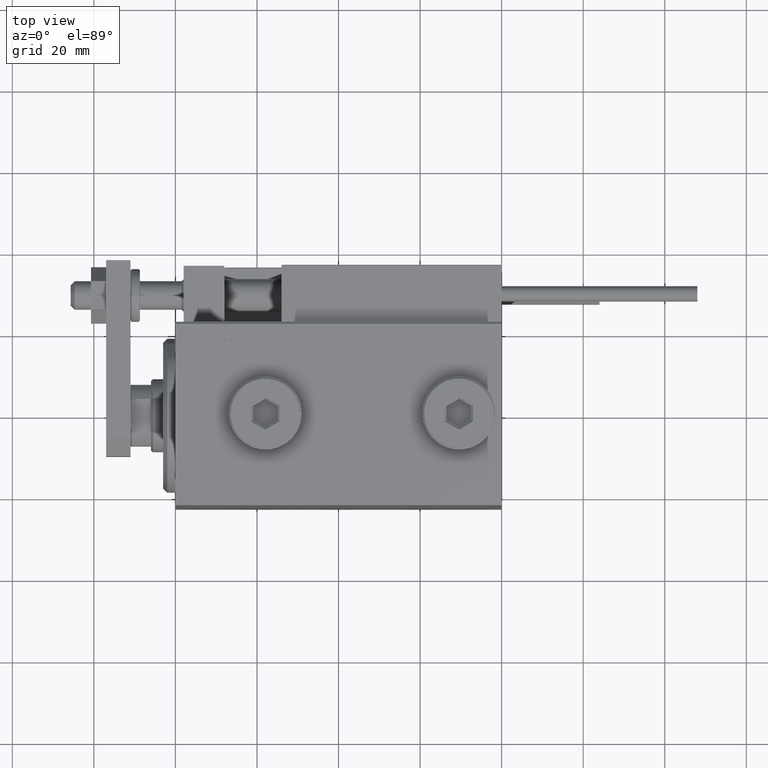
[diagram: clean part render]
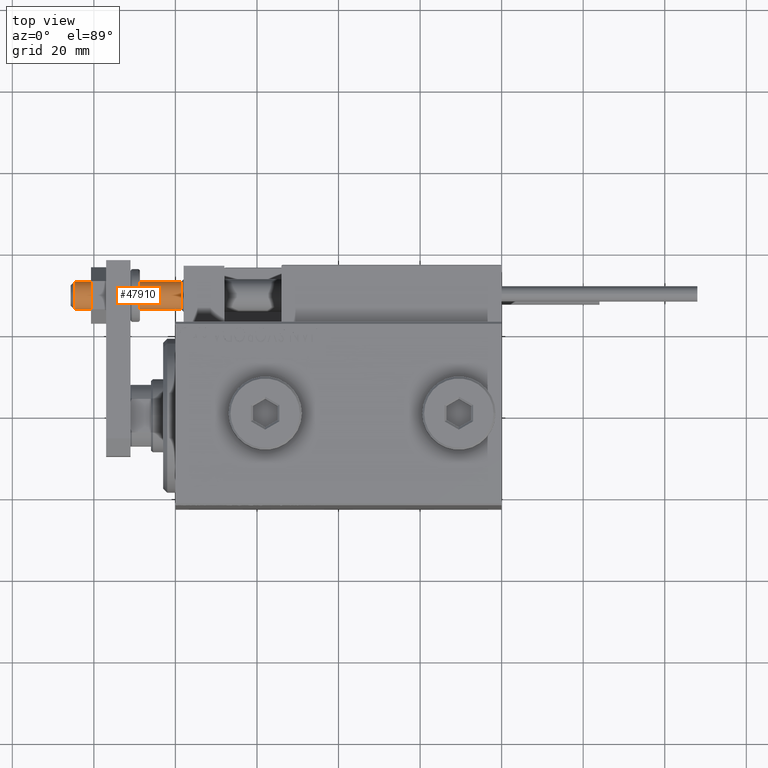
[diagram: same view with one face highlighted and labeled with its STEP entity id]
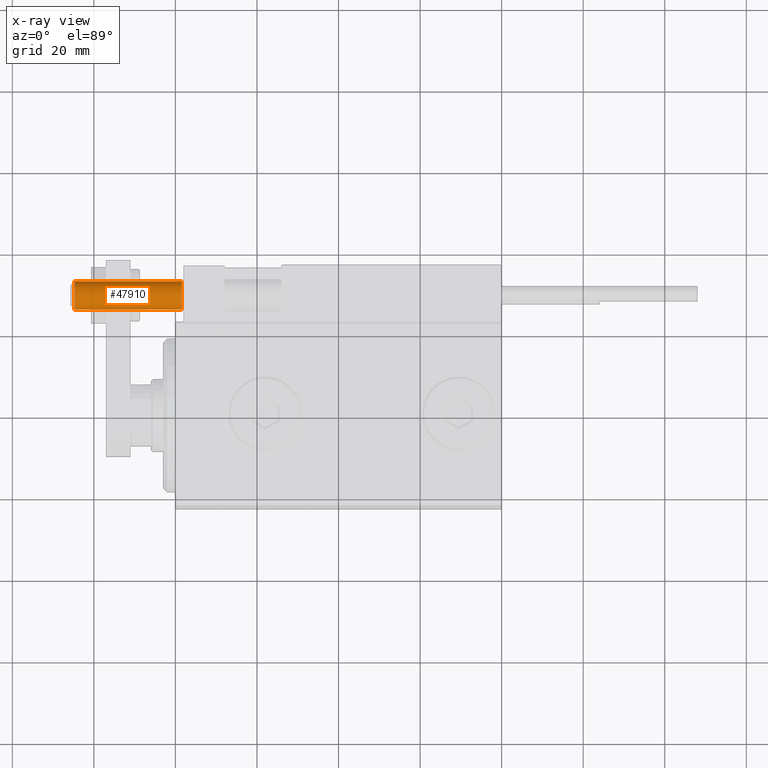
[diagram: x-ray of the same camera — body ghosted, the highlighted face saturated]
A machine part, top view. The second image highlights one B-rep face of the part: STEP entity #47910.
The next image is the same camera in x-ray: the body ghosted, the highlighted face saturated — about 0% of this face is hidden behind the body in this view.
In plain terms, the highlighted cylindrical surface (edge-blend (fillet) strip) has radius 3.5 mm, axis along (1, -0, -0).
Its self-contained STEP definition (entity closure, byte-faithful):
#107 = ORIENTED_EDGE ( 'NONE', *, *, #42774, .T. ) ;
#1455 = ORIENTED_EDGE ( 'NONE', *, *, #26327, .T. ) ;
#2087 = EDGE_LOOP ( 'NONE', ( #28945, #1455, #107, #8140 ) ) ;
#4722 = DIRECTION ( 'NONE',  ( -0.000000000000000000, -0.000000000000000000, 1.000000000000000000 ) ) ;
#7881 = LINE ( 'NONE', #24541, #35867 ) ;
#8140 = ORIENTED_EDGE ( 'NONE', *, *, #33872, .F. ) ;
#9620 = CARTESIAN_POINT ( 'NONE',  ( 3.500000000000000000, 0.000000000000000000, 1.500000000000025535 ) ) ;
#10351 = VERTEX_POINT ( 'NONE', #9620 ) ;
#10849 = DIRECTION ( 'NONE',  ( 0.000000000000000000, 0.000000000000000000, -1.000000000000000000 ) ) ;
#11017 = VECTOR ( 'NONE', #33064, 1000.000000000000000 ) ;
#11650 = VERTEX_POINT ( 'NONE', #31993 ) ;
#12354 = DIRECTION ( 'NONE',  ( -0.000000000000000000, -0.000000000000000000, 1.000000000000000000 ) ) ;
#14240 = DIRECTION ( 'NONE',  ( 1.000000000000000000, 0.000000000000000000, 0.000000000000000000 ) ) ;
#17802 = DIRECTION ( 'NONE',  ( 0.000000000000000000, 0.000000000000000000, 1.000000000000000000 ) ) ;
#17979 = CARTESIAN_POINT ( 'NONE',  ( 3.500000000000000000, 0.000000000000000000, -24.70000000000005969 ) ) ;
#19875 = CARTESIAN_POINT ( 'NONE',  ( -3.500000000000000000, 4.286263797015735609E-16, 1.500000000000025535 ) ) ;
#19946 = AXIS2_PLACEMENT_3D ( 'NONE', #41509, #17802, #29281 ) ;
#19976 = CIRCLE ( 'NONE', #19946, 3.500000000000000000 ) ;
#24541 = CARTESIAN_POINT ( 'NONE',  ( -3.500000000000000000, 4.286263797015735609E-16, -25.69999999999999929 ) ) ;
#25031 = EDGE_CURVE ( 'NONE', #35906, #11650, #19976, .T. ) ;
#25983 = AXIS2_PLACEMENT_3D ( 'NONE', #38210, #10849, #14240 ) ;
#26327 = EDGE_CURVE ( 'NONE', #11650, #46260, #7881, .T. ) ;
#28945 = ORIENTED_EDGE ( 'NONE', *, *, #25031, .T. ) ;
#29281 = DIRECTION ( 'NONE',  ( -1.000000000000000000, 0.000000000000000000, 0.000000000000000000 ) ) ;
#31160 = AXIS2_PLACEMENT_3D ( 'NONE', #48826, #12354, #48301 ) ;
#31993 = CARTESIAN_POINT ( 'NONE',  ( -3.500000000000000000, 4.286263797015735609E-16, -24.70000000000005969 ) ) ;
#32281 = CARTESIAN_POINT ( 'NONE',  ( 3.500000000000000000, 0.000000000000000000, -25.69999999999999929 ) ) ;
#33064 = DIRECTION ( 'NONE',  ( -0.000000000000000000, -0.000000000000000000, 1.000000000000000000 ) ) ;
#33474 = CIRCLE ( 'NONE', #25983, 3.500000000000000000 ) ;
#33872 = EDGE_CURVE ( 'NONE', #35906, #10351, #44510, .T. ) ;
#35867 = VECTOR ( 'NONE', #4722, 1000.000000000000000 ) ;
#35906 = VERTEX_POINT ( 'NONE', #17979 ) ;
#36074 = CYLINDRICAL_SURFACE ( 'NONE', #31160, 3.500000000000000000 ) ;
#36322 = FACE_OUTER_BOUND ( 'NONE', #2087, .T. ) ;
#38210 = CARTESIAN_POINT ( 'NONE',  ( 0.000000000000000000, 0.000000000000000000, 1.500000000000025535 ) ) ;
#41509 = CARTESIAN_POINT ( 'NONE',  ( 0.000000000000000000, 0.000000000000000000, -24.70000000000005969 ) ) ;
#42774 = EDGE_CURVE ( 'NONE', #46260, #10351, #33474, .T. ) ;
#44510 = LINE ( 'NONE', #32281, #11017 ) ;
#46260 = VERTEX_POINT ( 'NONE', #19875 ) ;
#47910 = ADVANCED_FACE ( 'NONE', ( #36322 ), #36074, .T. ) ;
#48301 = DIRECTION ( 'NONE',  ( 1.000000000000000000, 0.000000000000000000, 0.000000000000000000 ) ) ;
#48826 = CARTESIAN_POINT ( 'NONE',  ( 0.000000000000000000, 0.000000000000000000, -25.69999999999999929 ) ) ;